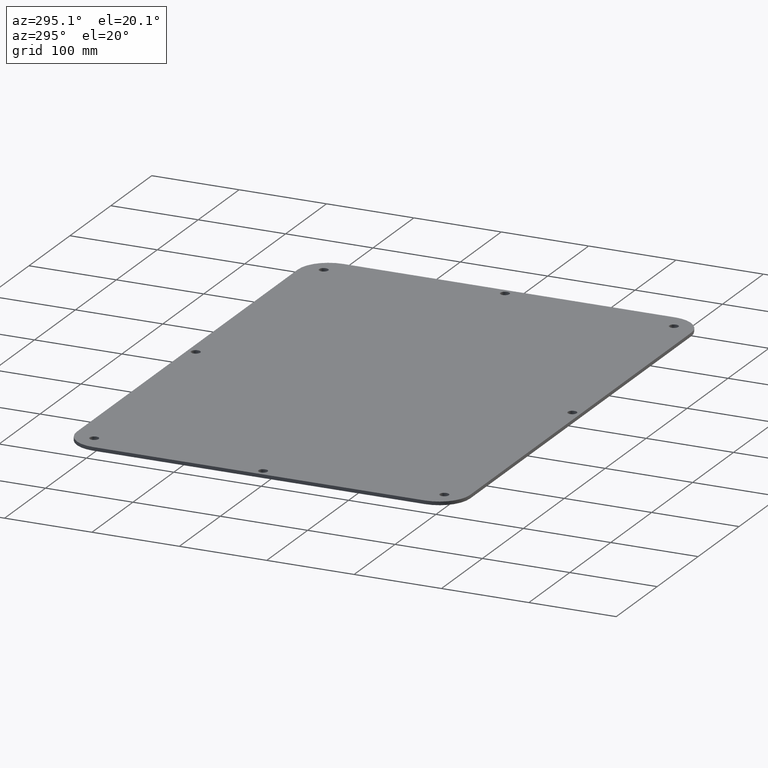
[diagram: clean part render]
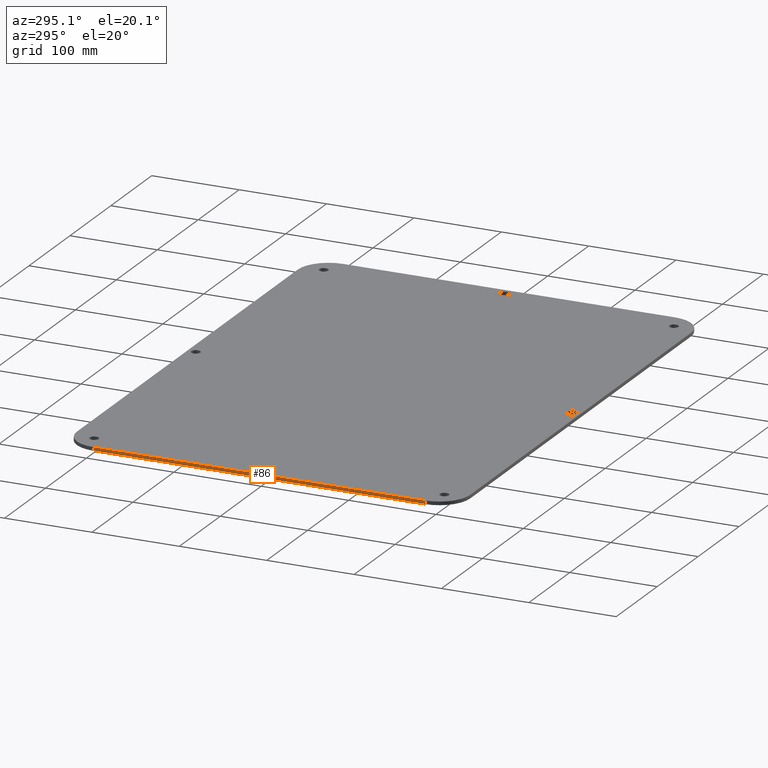
[diagram: same view with one face highlighted and labeled with its STEP entity id]
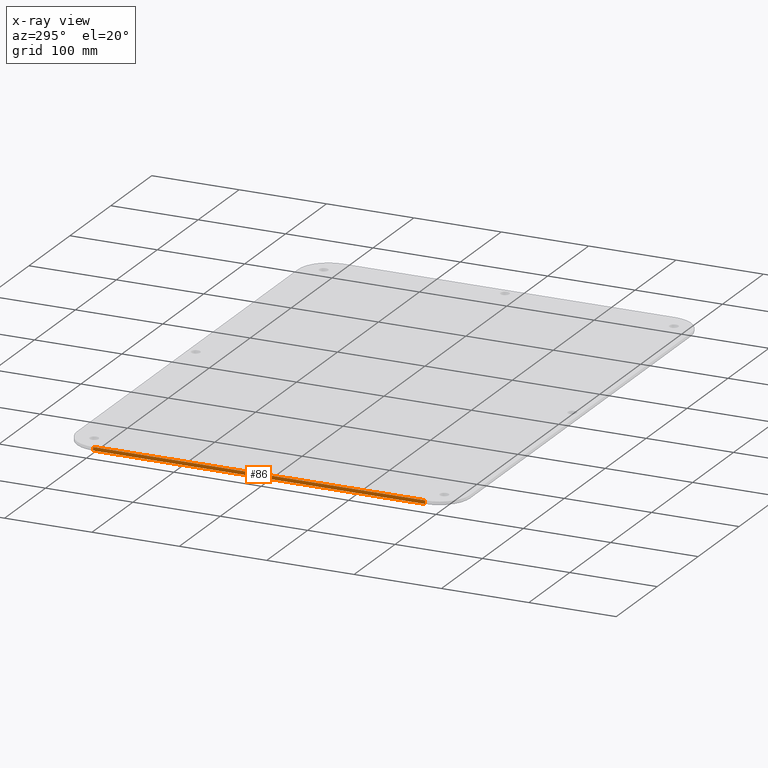
[diagram: x-ray of the same camera — body ghosted, the highlighted face saturated]
A machine part, auxiliary view. The second image highlights one B-rep face of the part: STEP entity #86.
The next image is the same camera in x-ray: the body ghosted, the highlighted face saturated — about 0% of this face is hidden behind the body in this view.
In plain terms, the highlighted planar face has unit normal (1, 0, 0).
Its self-contained STEP definition (entity closure, byte-faithful):
#69=PLANE('',#399);
#86=ADVANCED_FACE('',(#109),#69,.F.);
#109=FACE_OUTER_BOUND('',#133,.T.);
#133=EDGE_LOOP('',(#228,#229,#230,#231));
#155=LINE('',#515,#171);
#167=LINE('',#549,#183);
#168=LINE('',#588,#184);
#169=LINE('',#589,#185);
#171=VECTOR('',#412,1.);
#183=VECTOR('',#446,1.);
#184=VECTOR('',#493,1.);
#185=VECTOR('',#494,1.);
#228=ORIENTED_EDGE('',*,*,#334,.T.);
#229=ORIENTED_EDGE('',*,*,#301,.F.);
#230=ORIENTED_EDGE('',*,*,#335,.F.);
#231=ORIENTED_EDGE('',*,*,#318,.T.);
#266=VERTEX_POINT('',#509);
#269=VERTEX_POINT('',#514);
#280=VERTEX_POINT('',#548);
#281=VERTEX_POINT('',#550);
#301=EDGE_CURVE('',#269,#266,#155,.T.);
#318=EDGE_CURVE('',#281,#280,#167,.T.);
#334=EDGE_CURVE('',#280,#266,#168,.T.);
#335=EDGE_CURVE('',#281,#269,#169,.T.);
#399=AXIS2_PLACEMENT_3D('',#590,#495,#496);
#412=DIRECTION('',(0.,0.,-1.));
#446=DIRECTION('',(0.,0.,-1.));
#493=DIRECTION('',(0.,-1.,0.));
#494=DIRECTION('',(0.,-1.,0.));
#495=DIRECTION('',(1.,0.,0.));
#496=DIRECTION('',(0.,0.,-1.));
#509=CARTESIAN_POINT('',(695.,-2690.,0.));
#514=CARTESIAN_POINT('',(695.,-2690.,4.));
#515=CARTESIAN_POINT('',(695.,-2690.,4.));
#548=CARTESIAN_POINT('',(695.,-2310.,0.));
#549=CARTESIAN_POINT('',(695.,-2310.,4.));
#550=CARTESIAN_POINT('',(695.,-2310.,4.));
#588=CARTESIAN_POINT('',(695.,-2310.,0.));
#589=CARTESIAN_POINT('',(695.,-2310.,4.));
#590=CARTESIAN_POINT('',(695.,-2310.,4.));